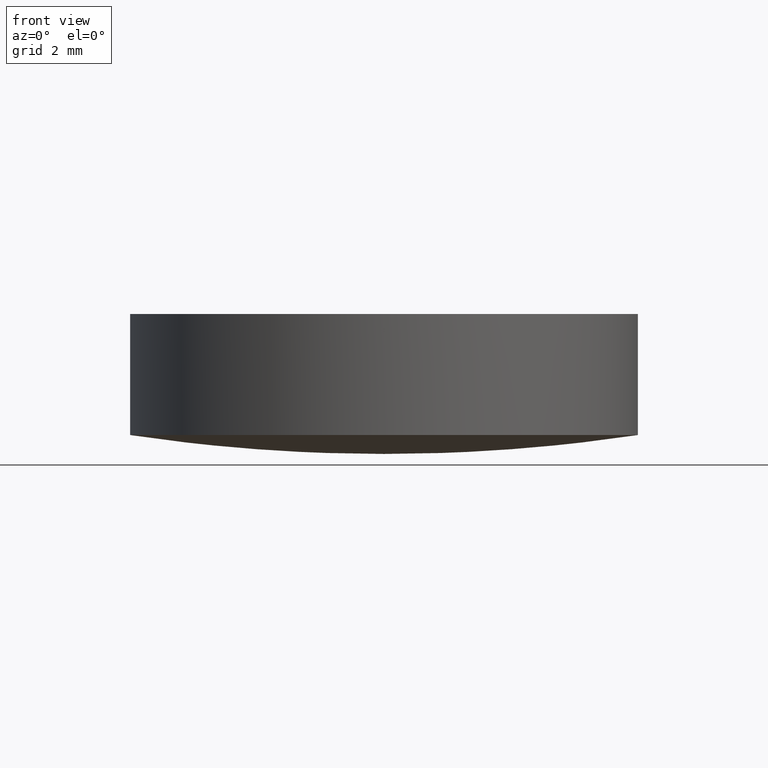
[diagram: clean part render]
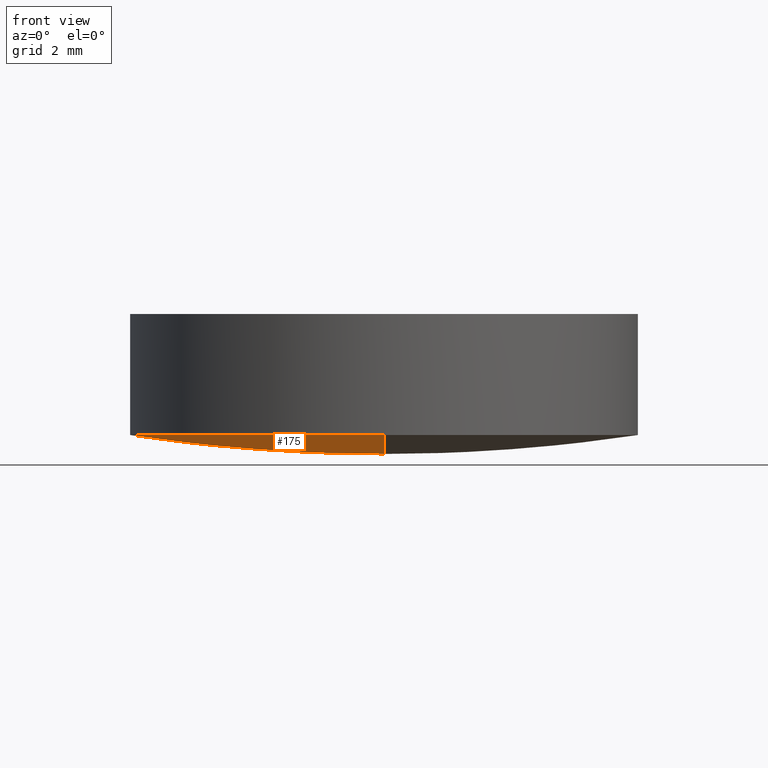
[diagram: same view with one face highlighted and labeled with its STEP entity id]
A machine part, front view. The second image highlights one B-rep face of the part: STEP entity #175.
In plain terms, the highlighted face is a freeform B-spline surface patch.
Its self-contained STEP definition (entity closure, byte-faithful):
#1 = CARTESIAN_POINT ( 'NONE',  ( -2.115045560822204500, 6.425627081475593800, 0.4845209326059024500 ) ) ;
#5 = DIRECTION ( 'NONE',  ( 1.000000000000000000, 0.0000000000000000000, 0.0000000000000000000 ) ) ;
#6 =( BOUNDED_SURFACE ( )  B_SPLINE_SURFACE ( 3, 3, ( 
 ( #204, #90, #222, #19 ),
 ( #55, #223, #34, #182 ),
 ( #70, #89, #184, #15 ),
 ( #73, #92, #1, #224 ) ),
 .UNSPECIFIED., .F., .F., .F. ) 
 B_SPLINE_SURFACE_WITH_KNOTS ( ( 4, 4 ),
 ( 4, 4 ),
 ( 0.0000000000000000000, 1.000000000000000000 ),
 ( 0.0000000000000000000, 1.000000000000000000 ),
 .UNSPECIFIED. ) 
 GEOMETRIC_REPRESENTATION_ITEM ( )  RATIONAL_B_SPLINE_SURFACE ( (
 ( 1.000000000000000000, 0.9981350681121785600, 0.9981350681121785600, 1.000000000000000000),
 ( 0.9924617513402426100, 0.9906108777727250500, 0.9906108777727250500, 0.9924617513402426100),
 ( 0.9924617513402426100, 0.9906108777727250500, 0.9906108777727250500, 0.9924617513402426100),
 ( 1.000000000000000000, 0.9981350681121785600, 0.9981350681121785600, 1.000000000000000000) ) ) 
 REPRESENTATION_ITEM ( '' )  SURFACE ( )  );
#10 = DIRECTION ( 'NONE',  ( -0.0000000000000000000, -0.0000000000000000000, -1.000000000000000000 ) ) ;
#12 = CARTESIAN_POINT ( 'NONE',  ( -6.349999999999999600, 1.998896044546239400E-015, 0.4731195107520910200 ) ) ;
#15 = CARTESIAN_POINT ( 'NONE',  ( -1.994931997373327800E-014, 2.158144322370867000, -0.1627337046664018800 ) ) ;
#19 = CARTESIAN_POINT ( 'NONE',  ( -1.994931997373328200E-014, -6.425627081475608900, 0.4845209326059019600 ) ) ;
#28 = VERTEX_POINT ( 'NONE', #12 ) ;
#34 = CARTESIAN_POINT ( 'NONE',  ( -2.147358969697073000, -2.158144322370883800, -0.1627337046664008900 ) ) ;
#42 = DIRECTION ( 'NONE',  ( -0.0000000000000000000, -0.0000000000000000000, -1.000000000000000000 ) ) ;
#46 = CIRCLE ( 'NONE', #88, 6.349999999999999600 ) ;
#52 = CARTESIAN_POINT ( 'NONE',  ( -1.065814103640150000E-014, -1.065814103640150000E-014, 42.85000000000000100 ) ) ;
#55 = CARTESIAN_POINT ( 'NONE',  ( -6.412075430496756200, -2.158144322370882500, 0.3178880206711915400 ) ) ;
#65 = ORIENTED_EDGE ( 'NONE', *, *, #169, .F. ) ;
#70 = CARTESIAN_POINT ( 'NONE',  ( -6.412075430496756200, 2.158144322370867000, 0.3178880206711910400 ) ) ;
#73 = CARTESIAN_POINT ( 'NONE',  ( -6.315586665438828200, 6.425627081475592900, 0.9579102731656630200 ) ) ;
#74 = VERTEX_POINT ( 'NONE', #235 ) ;
#79 = CIRCLE ( 'NONE', #215, 6.349999999999999600 ) ;
#80 = CARTESIAN_POINT ( 'NONE',  ( 2.498001805406600200E-016, 1.221245327087670000E-015, 0.4731195107520910200 ) ) ;
#88 = AXIS2_PLACEMENT_3D ( 'NONE', #113, #42, #207 ) ;
#89 = CARTESIAN_POINT ( 'NONE',  ( -4.288710922068345300, 2.158144322370867400, -0.002227129056143909000 ) ) ;
#90 = CARTESIAN_POINT ( 'NONE',  ( -4.224174497778531800, -6.425627081475608900, 0.6426122089215428000 ) ) ;
#92 = CARTESIAN_POINT ( 'NONE',  ( -4.224174497778531800, 6.425627081475593800, 0.6426122089215428000 ) ) ;
#113 = CARTESIAN_POINT ( 'NONE',  ( 2.498001805406600200E-016, 1.221245327087670000E-015, 0.4731195107520910200 ) ) ;
#124 = DIRECTION ( 'NONE',  ( 0.0000000000000000000, -1.000000000000000000, 0.0000000000000000000 ) ) ;
#127 = CIRCLE ( 'NONE', #200, 42.85000000000000100 ) ;
#134 = FACE_OUTER_BOUND ( 'NONE', #227, .T. ) ;
#138 = ORIENTED_EDGE ( 'NONE', *, *, #194, .T. ) ;
#143 = VERTEX_POINT ( 'NONE', #166 ) ;
#147 = ORIENTED_EDGE ( 'NONE', *, *, #188, .T. ) ;
#166 = CARTESIAN_POINT ( 'NONE',  ( -1.065814103640150000E-014, 6.350000000000000500, 0.4731195107520927400 ) ) ;
#169 = EDGE_CURVE ( 'NONE', #74, #143, #127, .T. ) ;
#175 = ADVANCED_FACE ( 'NONE', ( #134 ), #6, .T. ) ;
#182 = CARTESIAN_POINT ( 'NONE',  ( -1.994931997373327800E-014, -2.158144322370882500, -0.1627337046664013000 ) ) ;
#184 = CARTESIAN_POINT ( 'NONE',  ( -2.147358969697073000, 2.158144322370867400, -0.1627337046664014400 ) ) ;
#188 = EDGE_CURVE ( 'NONE', #74, #28, #79, .T. ) ;
#194 = EDGE_CURVE ( 'NONE', #28, #143, #46, .T. ) ;
#200 = AXIS2_PLACEMENT_3D ( 'NONE', #52, #5, #124 ) ;
#204 = CARTESIAN_POINT ( 'NONE',  ( -6.315586665438828200, -6.425627081475608900, 0.9579102731656630200 ) ) ;
#207 = DIRECTION ( 'NONE',  ( 1.000000000000000000, 0.0000000000000000000, 0.0000000000000000000 ) ) ;
#209 = DIRECTION ( 'NONE',  ( 1.000000000000000000, 0.0000000000000000000, 0.0000000000000000000 ) ) ;
#215 = AXIS2_PLACEMENT_3D ( 'NONE', #80, #10, #209 ) ;
#222 = CARTESIAN_POINT ( 'NONE',  ( -2.115045560822204500, -6.425627081475608900, 0.4845209326059024500 ) ) ;
#223 = CARTESIAN_POINT ( 'NONE',  ( -4.288710922068345300, -2.158144322370883800, -0.002227129056143366900 ) ) ;
#224 = CARTESIAN_POINT ( 'NONE',  ( -1.994931997373328200E-014, 6.425627081475592900, 0.4845209326059019600 ) ) ;
#227 = EDGE_LOOP ( 'NONE', ( #65, #147, #138 ) ) ;
#235 = CARTESIAN_POINT ( 'NONE',  ( -1.065814103640150000E-014, -6.350000000000010300, 0.4731195107520927400 ) ) ;